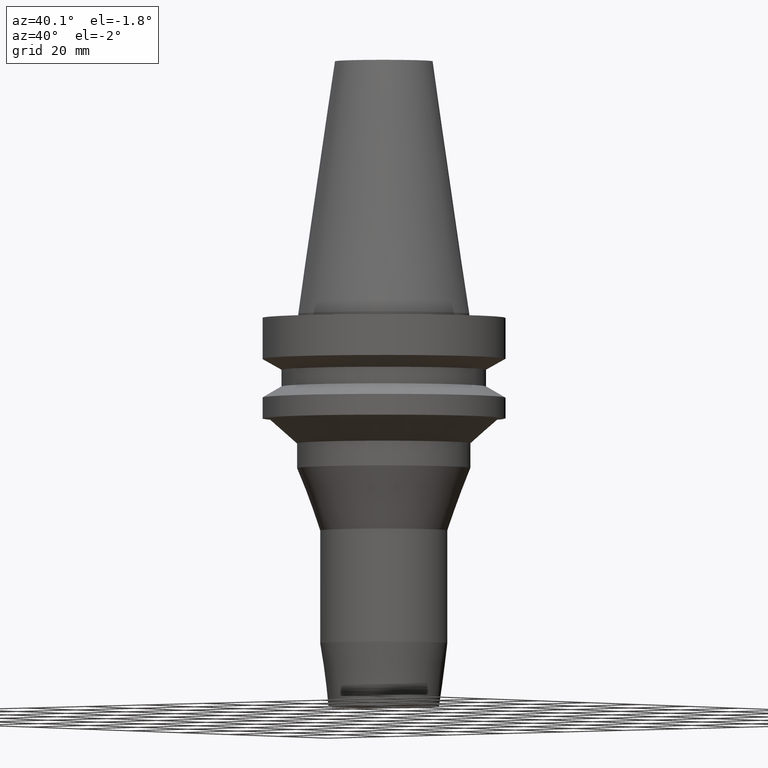
[diagram: clean part render]
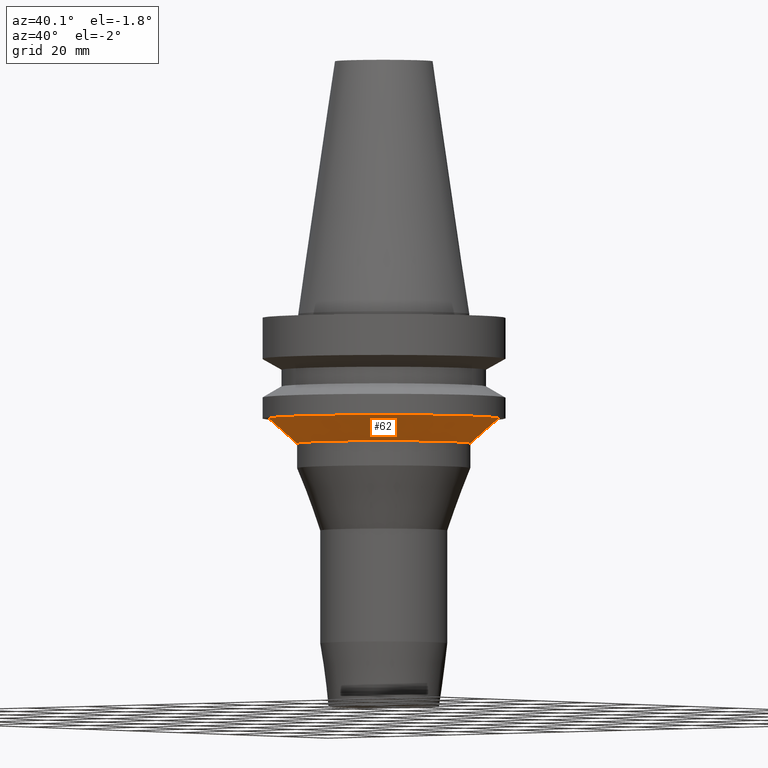
[diagram: same view with one face highlighted and labeled with its STEP entity id]
A machine part, auxiliary view. The second image highlights one B-rep face of the part: STEP entity #62.
In plain terms, the highlighted conical surface has half-angle 48.293 deg.
Its self-contained STEP definition (entity closure, byte-faithful):
#62=ADVANCED_FACE('Unnamed[1]',(#161,#162),#163,.T.);
#91=EDGE_CURVE('Unnamed[1]',#209,#209,#210,.T.);
#104=EDGE_CURVE('Unnamed[1]',#227,#227,#228,.T.);
#161=FACE_BOUND('',#296,.T.);
#162=FACE_BOUND('',#297,.T.);
#163=CONICAL_SURFACE('',#298,26.1261195155516,0.842867621949319);
#209=VERTEX_POINT('',#355);
#210=CIRCLE('',#356,22.4999999999999);
#227=VERTEX_POINT('',#377);
#228=CIRCLE('',#378,29.7522390311033);
#296=EDGE_LOOP('',(#451));
#297=EDGE_LOOP('',(#452));
#298=AXIS2_PLACEMENT_3D('',#453,#454,#455);
#355=CARTESIAN_POINT('',(2.04902721682137E-015,22.4999999999999,-33.4631539191216));
#356=AXIS2_PLACEMENT_3D('',#507,#508,#509);
#377=CARTESIAN_POINT('',(1.65327317884891E-015,29.7522390311033,-26.9999999999998));
#378=AXIS2_PLACEMENT_3D('',#525,#526,#527);
#451=ORIENTED_EDGE('',*,*,#91,.F.);
#452=ORIENTED_EDGE('',*,*,#104,.T.);
#453=CARTESIAN_POINT('',(1.85115019783514E-015,2.40324491971361E-014,-30.2315769595607));
#454=DIRECTION('',(-6.12323399573677E-017,5.49881288584983E-016,1.0));
#455=DIRECTION('',(2.88433652680564E-032,1.0,-5.49881288584983E-016));
#507=CARTESIAN_POINT('',(2.04902721682137E-015,2.22554654944511E-014,-33.4631539191216));
#508=DIRECTION('',(6.12323399573677E-017,-5.4988128858503E-016,-1.0));
#509=DIRECTION('',(2.88433652680582E-032,1.0,-5.4988128858503E-016));
#525=CARTESIAN_POINT('',(1.65327317884891E-015,2.58094328998211E-014,-26.9999999999998));
#526=DIRECTION('',(6.12323399573676E-017,-5.49881288585056E-016,-1.0));
#527=DIRECTION('',(2.8843365268067E-032,1.0,-5.49881288585056E-016));